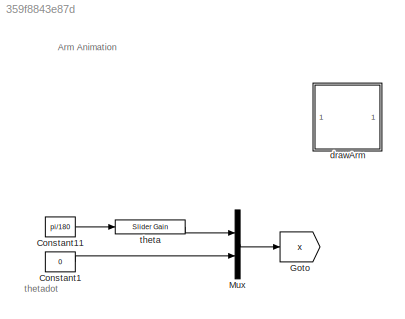
MODEL slx_359f8843e87d
KIND model
CONFIG AbsTol = auto
CONFIG EnableMultiTasking = on
CONFIG FixedStep = auto
CONFIG InitFcn = addpath ./..\narm_param
CONFIG MaxStep = auto
CONFIG MinStep = auto
CONFIG RelTol = 1e-3
CONFIG SampleTimeConstraint = Unconstrained
CONFIG Solver = ode45
CONFIG SolverName = ode45
CONFIG StartTime = 0.0
CONFIG StopTime = 10000
BLOCK [Constant] Constant1
  Value = 0
BLOCK [Constant] Constant11
  Value = pi/180
BLOCK [Goto] Goto
  GotoTag = x
  TagVisibility = global
BLOCK [Mux] Mux
  DisplayOption = bar
  Inputs = 2
  Ports = [2, 1]
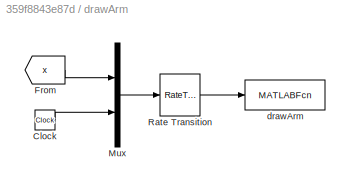
BLOCK [SubSystem] drawArm
  Ports = []
  RequestExecContextInheritance = off
  Variant = off
BLOCK [Clock] drawArm/Clock
BLOCK [From] drawArm/From
  GotoTag = x
  TagVisibility = global
BLOCK [Mux] drawArm/Mux
  DisplayOption = bar
  Inputs = 2
  Ports = [2, 1]
BLOCK [RateTransition] drawArm/Rate Transition
  OutPortSampleTime = P.t_plot
BLOCK [MATLABFcn] drawArm/drawArm
  MATLABFcn = drawArm(u, P)
  OutputDimensions = 0
  Ports = [1]
BLOCK [Reference] theta  REF=simulink/Math
Operations/Slider
Gain
  Ports = [1, 1]
  SourceBlock = simulink/Math\nOperations/Slider\nGain
  SourceType = Slider Gain
ANNOTATION (root): Arm Animation
ANNOTATION (root): thetadot
LINE Constant11:1 -> theta:1
LINE Constant1:1 -> Mux:2
LINE Mux:1 -> Goto:1
LINE drawArm/Clock:1 -> drawArm/Mux:2
LINE drawArm/From:1 -> drawArm/Mux:1
LINE drawArm/Mux:1 -> drawArm/Rate Transition:1
LINE drawArm/Rate Transition:1 -> drawArm/drawArm:1
LINE theta:1 -> Mux:1
